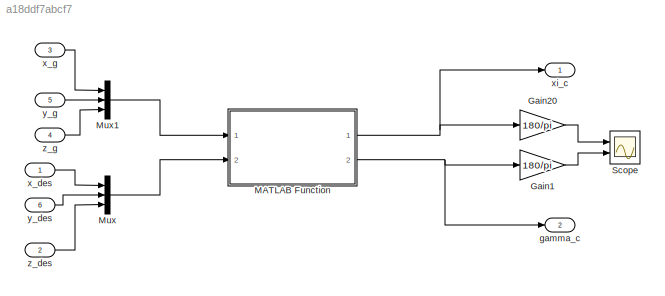
MODEL slx_a18ddf7abcf7
KIND model
CONFIG AbsTol = auto
CONFIG EnableMultiTasking = off
CONFIG FixedStep = auto
CONFIG MaxStep = auto
CONFIG MinStep = auto
CONFIG RelTol = 1e-3
CONFIG SampleTimeConstraint = Unconstrained
CONFIG Solver = VariableStepAuto
CONFIG SolverName = VariableStepAuto
CONFIG StartTime = 0.0
CONFIG StopTime = 10.0
BLOCK [Gain] Gain1
  Gain = 180/pi
BLOCK [Gain] Gain20
  Gain = 180/pi
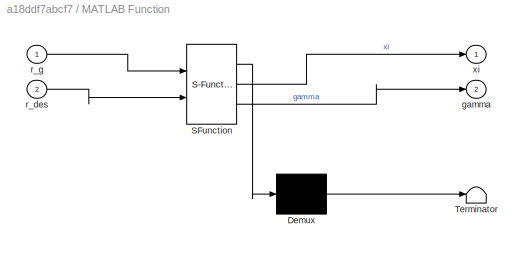
BLOCK [SubSystem] MATLAB Function
  ErrorFcn = Stateflow.Translate.translate
  PermitHierarchicalResolution = ExplicitOnly
  Ports = [2, 2]
  RequestExecContextInheritance = off
  SFBlockType = MATLAB Function
  TreatAsAtomicUnit = on
BLOCK [Demux] MATLAB Function/ Demux 
  Outputs = 1
  Ports = [1, 1]
BLOCK [S-Function] MATLAB Function/ SFunction 
  EnableBusSupport = on
  FunctionName = sf_sfun
  PortCounts = [2 3]
  Ports = [2, 3]
  SFcnIsStateOwnerBlock = off
  SFunctionDeploymentMode = off
  Tag = Stateflow S-Function 2
BLOCK [Terminator] MATLAB Function/ Terminator 
BLOCK [Outport] MATLAB Function/gamma
  Port = 2
BLOCK [Inport] MATLAB Function/r_des
  Port = 2
BLOCK [Inport] MATLAB Function/r_g
BLOCK [Outport] MATLAB Function/xi
BLOCK [Mux] Mux
  DisplayOption = bar
  Inputs = 3
  Ports = [3, 1]
BLOCK [Mux] Mux1
  DisplayOption = bar
  Inputs = 3
  Ports = [3, 1]
BLOCK [Scope] Scope
  Floating = off
  NumInputPorts = 2
  Ports = [2]
  ScopeSpecificationString = Simulink.scopes.TimeScopeBlockCfg('CurrentConfiguration', extmgr.ConfigurationSet(extmgr.Configuration('Core','General UI',true),extmgr.Configuration('Core','Source UI',true),extmgr.Configuration('Sources','WiredSimulink',true),extmgr.Configuration('Visuals','Time Domain',true,'SerializedDisplays',{struct('MinYLimReal','-224.81132','MaxYLimReal','224.79478','YLabelReal','','MinYLimMag',' 0.00000',...<+1420ch>
BLOCK [Outport] gamma_c
  Port = 2
BLOCK [Inport] x_des
BLOCK [Inport] x_g
  Port = 3
BLOCK [Outport] xi_c
BLOCK [Inport] y_des
  Port = 6
BLOCK [Inport] y_g
  Port = 5
BLOCK [Inport] z_des
  Port = 2
BLOCK [Inport] z_g
  Port = 4
LINE Gain1:1 -> Scope:2
LINE Gain20:1 -> Scope:1
NET MATLAB Function:1 -> Gain20:1, xi_c:1
NET MATLAB Function:2 -> Gain1:1, gamma_c:1
LINE Mux1:1 -> MATLAB Function:1
LINE Mux:1 -> MATLAB Function:2
LINE x_des:1 -> Mux:1
LINE x_g:1 -> Mux1:1
LINE y_des:1 -> Mux:2
LINE y_g:1 -> Mux1:2
LINE z_des:1 -> Mux:3
LINE z_g:1 -> Mux1:3
note: NET lines group one-source signal fan-out (src -> all destinations, sorted); 1:1 wires keep LINE
CHART MATLAB Function states=1 transitions=1
  STATE_LABEL 'eML_blk_kernel()'
  STATE_LABEL 'SCRIPT:\nfunction [xi, gamma] = fcn(r_g, r_des)\ndelta_r = r_des - r_g;\nxi = atan2(-delta_r(3), delta_r(1));\ngamma = 0;\ngamma = atan2(delta_r(2), delta_r(1));\n'
CHART  states=0 transitions=0
